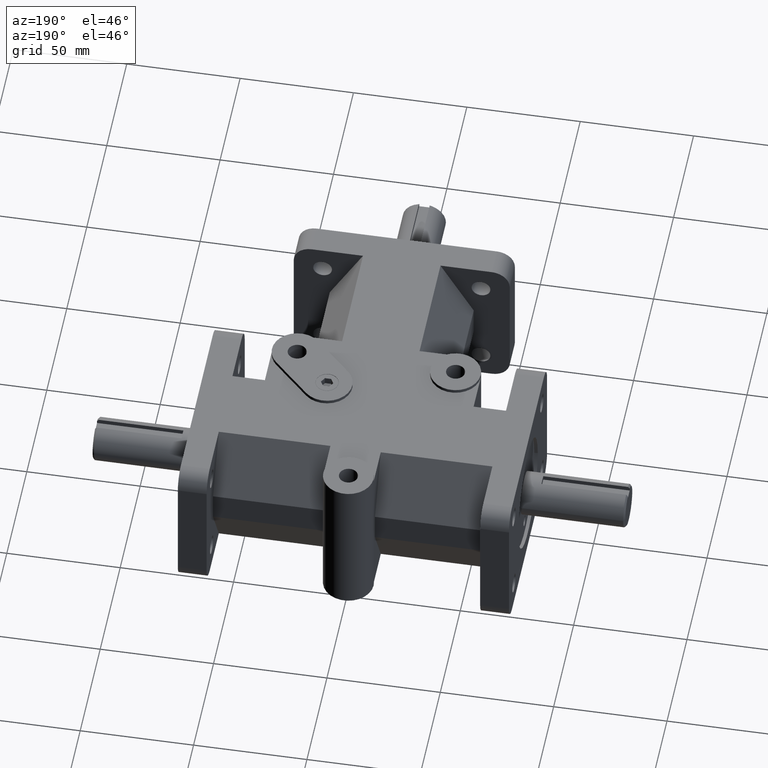
[diagram: clean part render]
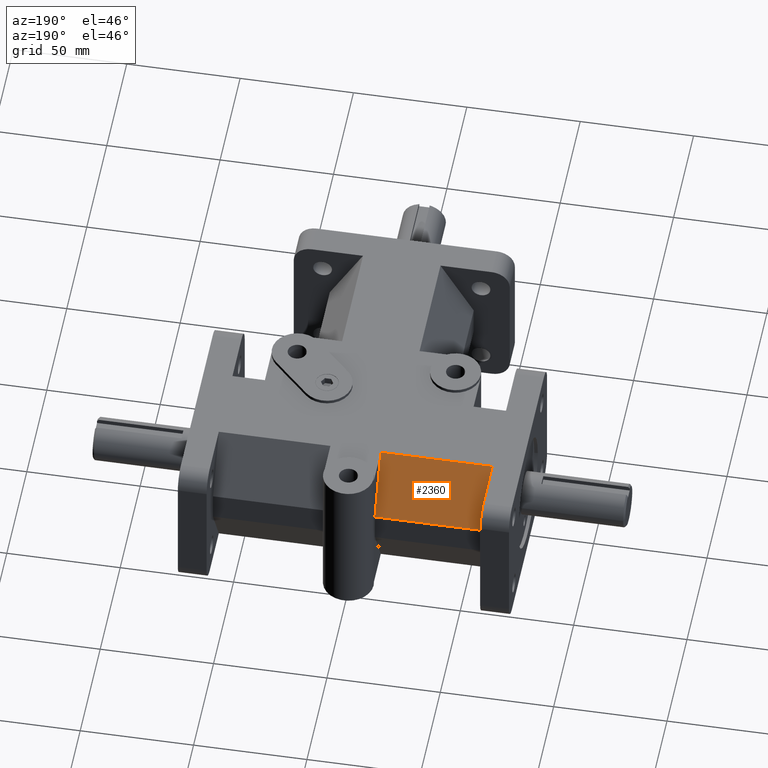
[diagram: same view with one face highlighted and labeled with its STEP entity id]
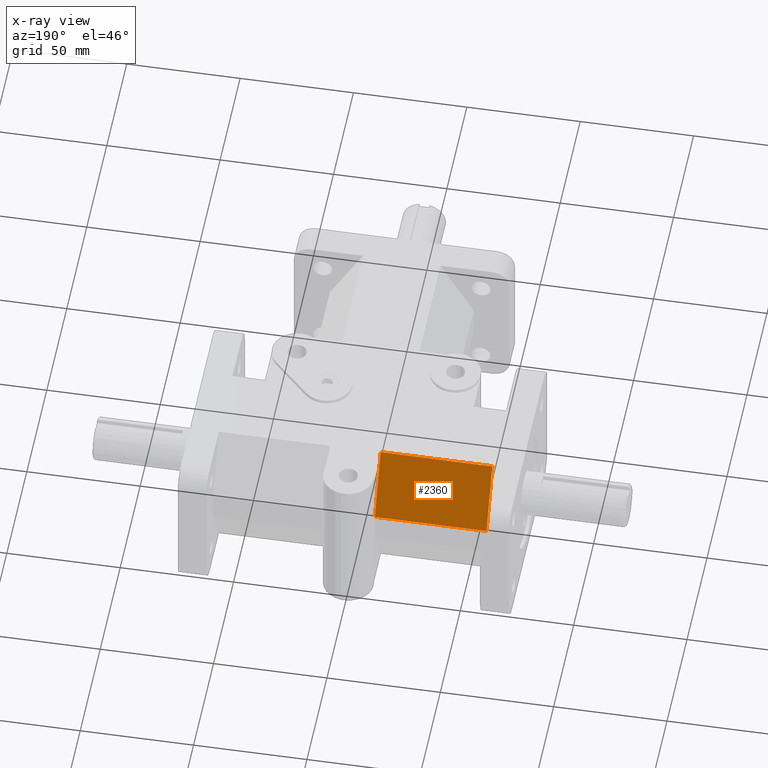
[diagram: x-ray of the same camera — body ghosted, the highlighted face saturated]
A machine part, auxiliary view. The second image highlights one B-rep face of the part: STEP entity #2360.
The next image is the same camera in x-ray: the body ghosted, the highlighted face saturated — about 0% of this face is hidden behind the body in this view.
In plain terms, the highlighted planar face has unit normal (0, 0.866, 0.5).
Its self-contained STEP definition (entity closure, byte-faithful):
#94=LINE('',#3595,#316);
#214=LINE('',#3955,#436);
#215=LINE('',#3957,#437);
#216=LINE('',#3958,#438);
#316=VECTOR('',#2874,1.);
#436=VECTOR('',#3222,1.);
#437=VECTOR('',#3223,1.);
#438=VECTOR('',#3224,1.);
#648=FACE_OUTER_BOUND('',#805,.T.);
#805=EDGE_LOOP('',(#1994,#1995,#1996,#1997));
#1069=VERTEX_POINT('',#3592);
#1070=VERTEX_POINT('',#3594);
#1178=VERTEX_POINT('',#3954);
#1179=VERTEX_POINT('',#3956);
#1309=EDGE_CURVE('',#1070,#1069,#94,.T.);
#1481=EDGE_CURVE('',#1178,#1070,#214,.F.);
#1482=EDGE_CURVE('',#1069,#1179,#215,.F.);
#1483=EDGE_CURVE('',#1179,#1178,#216,.T.);
#1994=ORIENTED_EDGE('',*,*,#1481,.T.);
#1995=ORIENTED_EDGE('',*,*,#1309,.T.);
#1996=ORIENTED_EDGE('',*,*,#1482,.T.);
#1997=ORIENTED_EDGE('',*,*,#1483,.T.);
#2239=PLANE('',#2603);
#2360=ADVANCED_FACE('',(#648),#2239,.T.);
#2603=AXIS2_PLACEMENT_3D('',#3953,#3220,#3221);
#2874=DIRECTION('',(1.,0.,0.));
#3220=DIRECTION('center_axis',(0.,0.866025504730542,0.499999825156179));
#3221=DIRECTION('ref_axis',(0.,0.499999825156179,-0.866025504730542));
#3222=DIRECTION('',(0.,0.499999825156179,-0.866025504730542));
#3223=DIRECTION('',(0.,-0.499999825156179,0.866025504730542));
#3224=DIRECTION('',(-1.,0.,0.));
#3592=CARTESIAN_POINT('',(-0.4375,5.04765,1.25));
#3594=CARTESIAN_POINT('',(-2.375,5.04765,1.25));
#3595=CARTESIAN_POINT('',(-0.21875,5.04765,1.25));
#3953=CARTESIAN_POINT('Origin',(-0.21875,5.336325,0.75));
#3954=CARTESIAN_POINT('',(-2.375,5.625,0.25));
#3955=CARTESIAN_POINT('',(-2.375,5.53478907511826,0.406249978144526));
#3956=CARTESIAN_POINT('',(-0.4375,5.625,0.25));
#3957=CARTESIAN_POINT('',(-0.4375,5.55041406419052,0.379186690585397));
#3958=CARTESIAN_POINT('',(-0.21875,5.625,0.25));